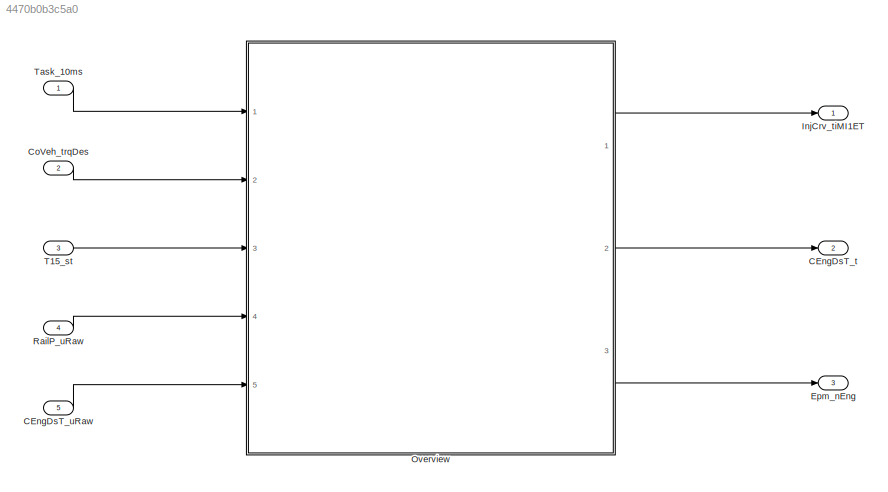
MODEL slx_4470b0b3c5a0
KIND model
CONFIG AbsTol = auto
CONFIG EnableMultiTasking = off
CONFIG FixedStep = auto
CONFIG MaxStep = auto
CONFIG MinStep = auto
CONFIG RelTol = 1e-3
CONFIG SampleTimeConstraint = Unconstrained
CONFIG SolverName = VariableStepAuto
CONFIG StartTime = 0.0
CONFIG StopTime = 10.0
BLOCK [Outport] CEngDsT_t
  Port = 2
BLOCK [Inport] CEngDsT_uRaw
  Port = 5
BLOCK [Inport] CoVeh_trqDes
  Port = 2
BLOCK [Outport] Epm_nEng
  Port = 3
BLOCK [Outport] InjCrv_tiMI1ET
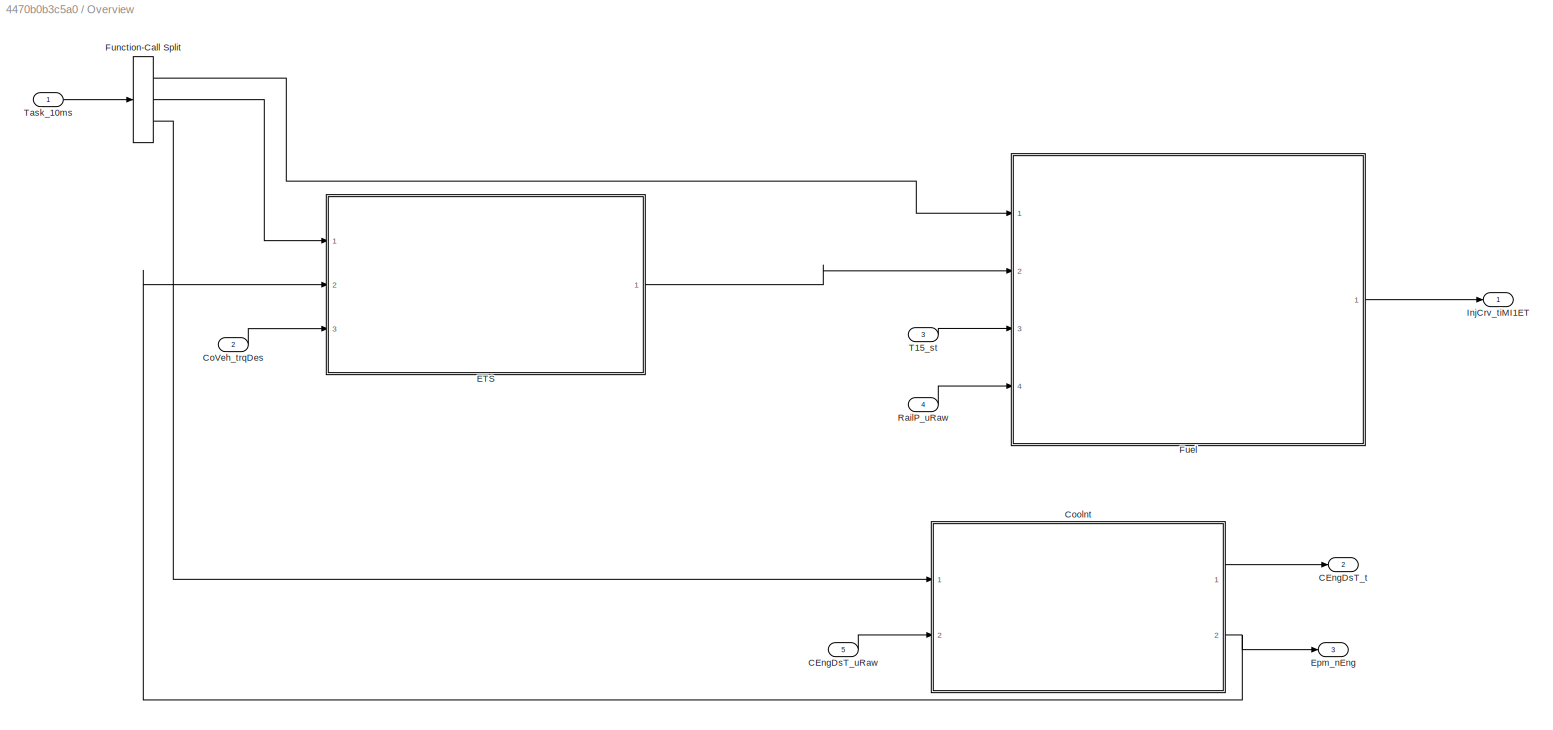
BLOCK [SubSystem] Overview
  Ports = [5, 3]
  RequestExecContextInheritance = off
BLOCK [Outport] Overview/CEngDsT_t
  Port = 2
BLOCK [Inport] Overview/CEngDsT_uRaw
  Port = 5
BLOCK [Inport] Overview/CoVeh_trqDes
  Port = 2
BLOCK [ModelReference] Overview/Coolnt
  ModelNameDialog = Coolnt
  ModelReferenceVersion = 6.1
  Ports = [2, 2]
  ScheduleRates = on
BLOCK [ModelReference] Overview/ETS
  ModelNameDialog = ETS
  ModelReferenceVersion = 1.5
  Ports = [3, 1]
  ScheduleRates = on
BLOCK [Outport] Overview/Epm_nEng
  Port = 3
BLOCK [ModelReference] Overview/Fuel
  ModelNameDialog = Fuel
  ModelReferenceVersion = 6.2
  Ports = [4, 1]
  ScheduleRates = on
BLOCK [FunctionCallSplit] Overview/Function-Call Split
  IconShape = distinctive
  NumOutputPorts = 3
  OutputPortLayout = default
  Ports = [1, 3]
BLOCK [Outport] Overview/InjCrv_tiMI1ET
  VectorParamsAs1DForOutWhenUnconnected = off
BLOCK [Inport] Overview/RailP_uRaw
  Port = 4
BLOCK [Inport] Overview/T15_st
  Port = 3
BLOCK [Inport] Overview/Task_10ms
BLOCK [Inport] RailP_uRaw
  Port = 4
BLOCK [Inport] T15_st
  Port = 3
BLOCK [Inport] Task_10ms
  OutputFunctionCall = on
LINE CEngDsT_uRaw:1 -> Overview:5
LINE CoVeh_trqDes:1 -> Overview:2
LINE Overview/CEngDsT_uRaw:1 -> Overview/Coolnt:2
LINE Overview/CoVeh_trqDes:1 -> Overview/ETS:3
LINE Overview/Coolnt:1 -> Overview/CEngDsT_t:1
NET Overview/Coolnt:2 -> Overview/ETS:2, Overview/Epm_nEng:1
LINE Overview/ETS:1 -> Overview/Fuel:2
LINE Overview/Fuel:1 -> Overview/InjCrv_tiMI1ET:1
LINE Overview/Function-Call Split:1 -> Overview/Fuel:1
LINE Overview/Function-Call Split:2 -> Overview/ETS:1
LINE Overview/Function-Call Split:3 -> Overview/Coolnt:1
LINE Overview/RailP_uRaw:1 -> Overview/Fuel:4
LINE Overview/T15_st:1 -> Overview/Fuel:3
LINE Overview/Task_10ms:1 -> Overview/Function-Call Split:1
LINE Overview:1 -> InjCrv_tiMI1ET:1
LINE Overview:2 -> CEngDsT_t:1
LINE Overview:3 -> Epm_nEng:1
LINE RailP_uRaw:1 -> Overview:4
LINE T15_st:1 -> Overview:3
LINE Task_10ms:1 -> Overview:1
note: NET lines group one-source signal fan-out (src -> all destinations, sorted); 1:1 wires keep LINE
